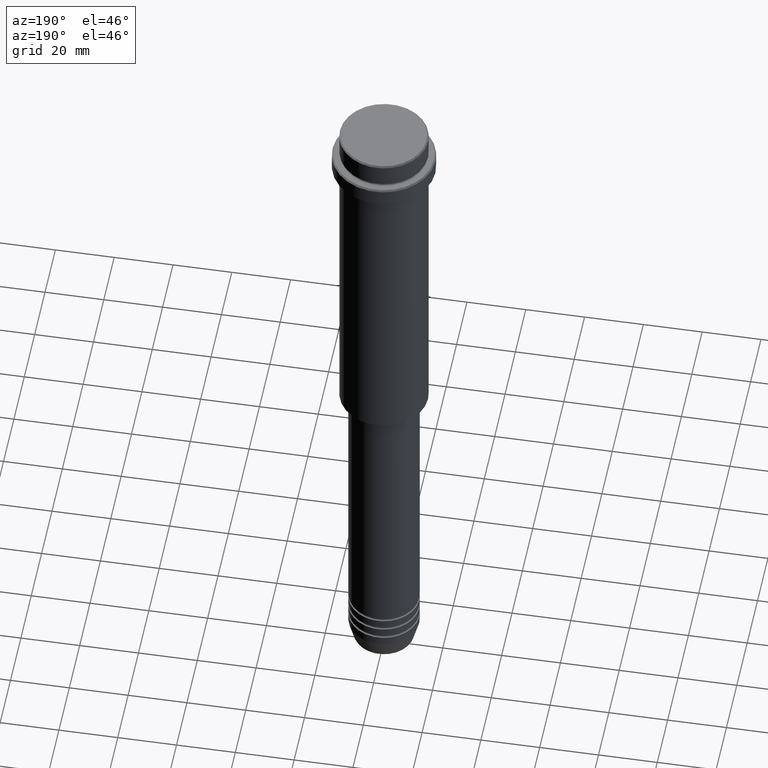
[diagram: clean part render]
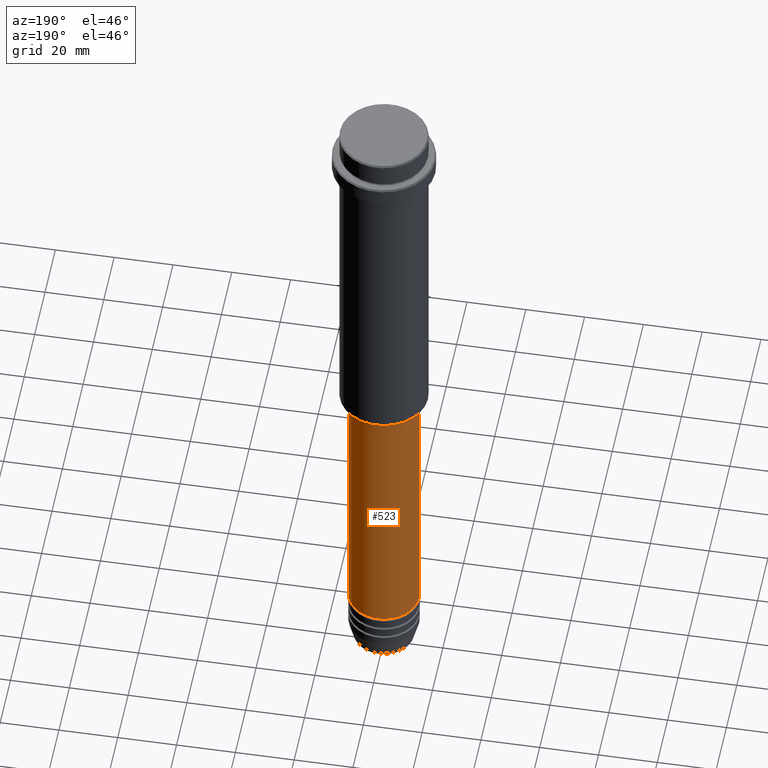
[diagram: same view with one face highlighted and labeled with its STEP entity id]
A machine part, auxiliary view. The second image highlights one B-rep face of the part: STEP entity #523.
In plain terms, the highlighted cylindrical surface (edge-blend (fillet) strip) has radius 12 mm, axis along (-0, -0, 1).
Its self-contained STEP definition (entity closure, byte-faithful):
#6 = EDGE_LOOP ( 'NONE', ( #1128, #333, #240, #305 ) ) ;
#15 = FACE_OUTER_BOUND ( 'NONE', #6, .T. ) ;
#52 = CIRCLE ( 'NONE', #1066, 11.99999999999999822 ) ;
#174 = DIRECTION ( 'NONE',  ( 1.000000000000000000, 0.000000000000000000, 0.000000000000000000 ) ) ;
#205 = DIRECTION ( 'NONE',  ( -0.000000000000000000, -0.000000000000000000, 1.000000000000000000 ) ) ;
#218 = CIRCLE ( 'NONE', #1287, 12.00000000000000000 ) ;
#228 = EDGE_CURVE ( 'NONE', #727, #1239, #218, .T. ) ;
#240 = ORIENTED_EDGE ( 'NONE', *, *, #865, .F. ) ;
#305 = ORIENTED_EDGE ( 'NONE', *, *, #634, .F. ) ;
#309 = CARTESIAN_POINT ( 'NONE',  ( -12.00000000000000000, 1.469576158976823947E-15, 0.000000000000000000 ) ) ;
#333 = ORIENTED_EDGE ( 'NONE', *, *, #955, .T. ) ;
#381 = VECTOR ( 'NONE', #840, 1000.000000000000000 ) ;
#417 = CYLINDRICAL_SURFACE ( 'NONE', #1401, 12.00000000000000000 ) ;
#437 = CARTESIAN_POINT ( 'NONE',  ( 12.00000000000000000, 0.000000000000000000, -220.9999999999998579 ) ) ;
#453 = CARTESIAN_POINT ( 'NONE',  ( -12.00000000000000000, 1.469576158976823947E-15, -220.9999999999998579 ) ) ;
#509 = DIRECTION ( 'NONE',  ( -0.000000000000000000, -0.000000000000000000, 1.000000000000000000 ) ) ;
#523 = ADVANCED_FACE ( 'NONE', ( #15 ), #417, .T. ) ;
#560 = VERTEX_POINT ( 'NONE', #593 ) ;
#592 = VERTEX_POINT ( 'NONE', #1149 ) ;
#593 = CARTESIAN_POINT ( 'NONE',  ( -11.99999999999999822, 1.469576158976823750E-15, -126.0000000000000000 ) ) ;
#616 = DIRECTION ( 'NONE',  ( 1.000000000000000000, 0.000000000000000000, 0.000000000000000000 ) ) ;
#623 = CARTESIAN_POINT ( 'NONE',  ( 0.000000000000000000, 0.000000000000000000, -220.9999999999998579 ) ) ;
#634 = EDGE_CURVE ( 'NONE', #727, #592, #902, .T. ) ;
#673 = CARTESIAN_POINT ( 'NONE',  ( 12.00000000000000000, 0.000000000000000000, 0.000000000000000000 ) ) ;
#727 = VERTEX_POINT ( 'NONE', #437 ) ;
#818 = DIRECTION ( 'NONE',  ( -0.000000000000000000, -0.000000000000000000, 1.000000000000000000 ) ) ;
#829 = VECTOR ( 'NONE', #974, 1000.000000000000000 ) ;
#834 = CARTESIAN_POINT ( 'NONE',  ( 0.000000000000000000, 0.000000000000000000, 0.000000000000000000 ) ) ;
#840 = DIRECTION ( 'NONE',  ( -0.000000000000000000, -0.000000000000000000, 1.000000000000000000 ) ) ;
#862 = LINE ( 'NONE', #309, #381 ) ;
#865 = EDGE_CURVE ( 'NONE', #592, #560, #52, .T. ) ;
#902 = LINE ( 'NONE', #673, #829 ) ;
#955 = EDGE_CURVE ( 'NONE', #1239, #560, #862, .T. ) ;
#974 = DIRECTION ( 'NONE',  ( -0.000000000000000000, -0.000000000000000000, 1.000000000000000000 ) ) ;
#1038 = CARTESIAN_POINT ( 'NONE',  ( 0.000000000000000000, 0.000000000000000000, -126.0000000000000000 ) ) ;
#1066 = AXIS2_PLACEMENT_3D ( 'NONE', #1038, #818, #1364 ) ;
#1128 = ORIENTED_EDGE ( 'NONE', *, *, #228, .T. ) ;
#1149 = CARTESIAN_POINT ( 'NONE',  ( 11.99999999999999822, 0.000000000000000000, -126.0000000000000000 ) ) ;
#1239 = VERTEX_POINT ( 'NONE', #453 ) ;
#1287 = AXIS2_PLACEMENT_3D ( 'NONE', #623, #509, #174 ) ;
#1364 = DIRECTION ( 'NONE',  ( 1.000000000000000000, 0.000000000000000000, 0.000000000000000000 ) ) ;
#1401 = AXIS2_PLACEMENT_3D ( 'NONE', #834, #205, #616 ) ;